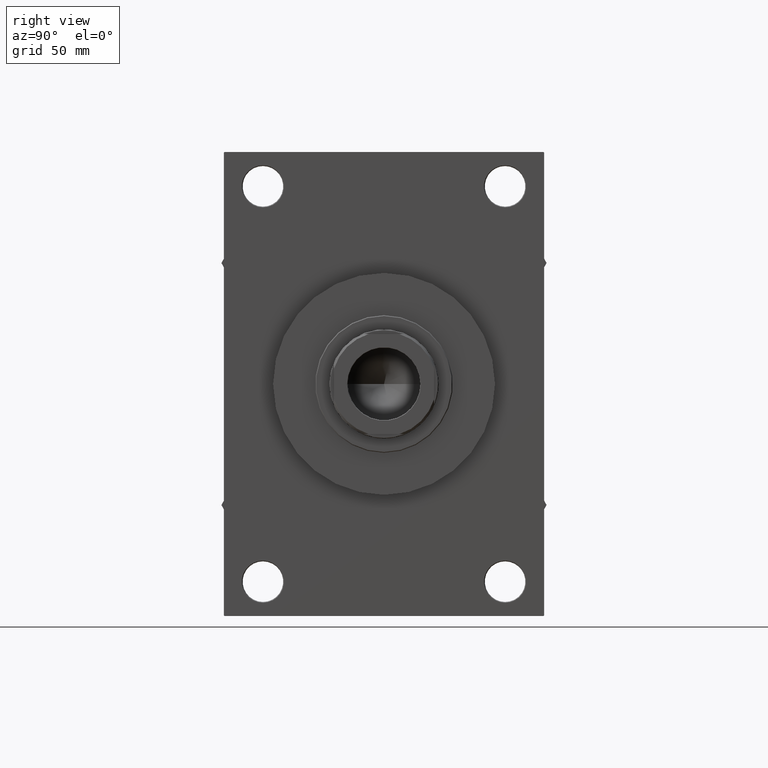
[diagram: clean part render]
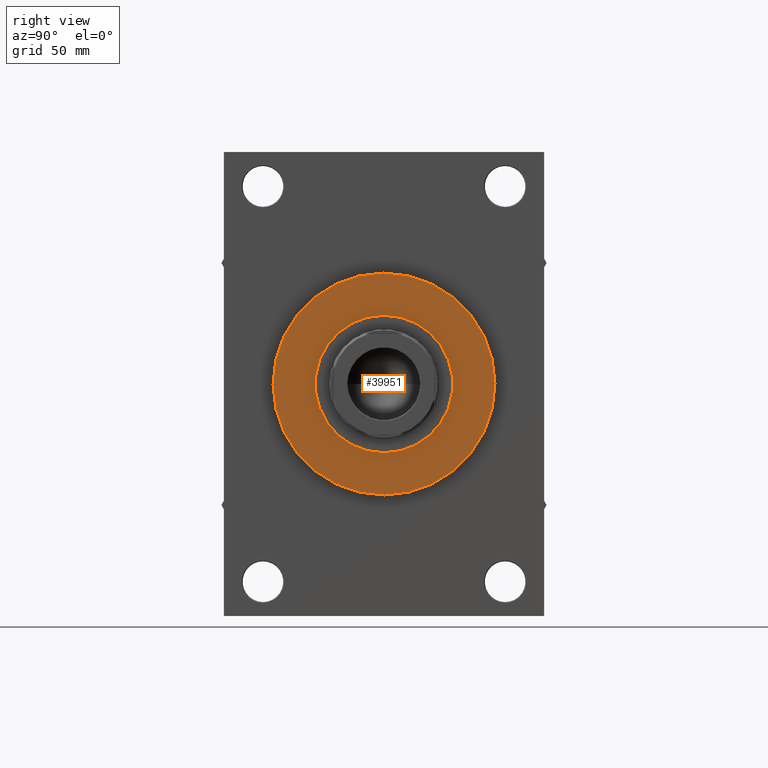
[diagram: same view with one face highlighted and labeled with its STEP entity id]
A machine part, right view. The second image highlights one B-rep face of the part: STEP entity #39951.
In plain terms, the highlighted planar face has unit normal (1, -0, -0).
Its self-contained STEP definition (entity closure, byte-faithful):
#2004 = EDGE_LOOP ( 'NONE', ( #26645, #24021 ) ) ;
#2281 = CIRCLE ( 'NONE', #20011, 71.00000000000001421 ) ;
#3054 = DIRECTION ( 'NONE',  ( 0.000000000000000000, 0.000000000000000000, 1.000000000000000000 ) ) ;
#3878 = DIRECTION ( 'NONE',  ( 1.000000000000000000, 0.000000000000000000, 0.000000000000000000 ) ) ;
#3906 = EDGE_CURVE ( 'NONE', #16915, #42756, #42789, .T. ) ;
#5393 = DIRECTION ( 'NONE',  ( 0.000000000000000000, 0.000000000000000000, 1.000000000000000000 ) ) ;
#5765 = DIRECTION ( 'NONE',  ( 0.000000000000000000, 0.000000000000000000, 1.000000000000000000 ) ) ;
#8526 = DIRECTION ( 'NONE',  ( 1.000000000000000000, 0.000000000000000000, -0.000000000000000000 ) ) ;
#8766 = FACE_OUTER_BOUND ( 'NONE', #2004, .T. ) ;
#9719 = DIRECTION ( 'NONE',  ( 1.000000000000000000, 0.000000000000000000, 0.000000000000000000 ) ) ;
#11213 = AXIS2_PLACEMENT_3D ( 'NONE', #28617, #3054, #47159 ) ;
#12425 = AXIS2_PLACEMENT_3D ( 'NONE', #22199, #36900, #3878 ) ;
#13341 = CARTESIAN_POINT ( 'NONE',  ( 0.000000000000000000, 0.000000000000000000, 43.25999999999999801 ) ) ;
#13727 = CARTESIAN_POINT ( 'NONE',  ( 0.000000000000000000, 0.000000000000000000, 43.25999999999999801 ) ) ;
#15955 = CARTESIAN_POINT ( 'NONE',  ( 71.00000000000001421, 8.694992273946208141E-15, 43.25999999999999801 ) ) ;
#16104 = EDGE_LOOP ( 'NONE', ( #23555, #16301 ) ) ;
#16301 = ORIENTED_EDGE ( 'NONE', *, *, #3906, .F. ) ;
#16915 = VERTEX_POINT ( 'NONE', #46251 ) ;
#16993 = EDGE_CURVE ( 'NONE', #30290, #18027, #2281, .T. ) ;
#18027 = VERTEX_POINT ( 'NONE', #39689 ) ;
#20011 = AXIS2_PLACEMENT_3D ( 'NONE', #13727, #5765, #20470 ) ;
#20470 = DIRECTION ( 'NONE',  ( 1.000000000000000000, 0.000000000000000000, 0.000000000000000000 ) ) ;
#21315 = EDGE_CURVE ( 'NONE', #42756, #16915, #27825, .T. ) ;
#22199 = CARTESIAN_POINT ( 'NONE',  ( 0.000000000000000000, 0.000000000000000000, 43.25999999999999801 ) ) ;
#22424 = CARTESIAN_POINT ( 'NONE',  ( -44.00000000000000000, 0.000000000000000000, 43.25999999999999801 ) ) ;
#23449 = PLANE ( 'NONE',  #37600 ) ;
#23555 = ORIENTED_EDGE ( 'NONE', *, *, #21315, .F. ) ;
#24021 = ORIENTED_EDGE ( 'NONE', *, *, #16993, .T. ) ;
#24593 = EDGE_CURVE ( 'NONE', #18027, #30290, #29333, .T. ) ;
#26645 = ORIENTED_EDGE ( 'NONE', *, *, #24593, .T. ) ;
#27825 = CIRCLE ( 'NONE', #41676, 44.00000000000000000 ) ;
#28024 = DIRECTION ( 'NONE',  ( 0.000000000000000000, 0.000000000000000000, 1.000000000000000000 ) ) ;
#28617 = CARTESIAN_POINT ( 'NONE',  ( 0.000000000000000000, 0.000000000000000000, 43.25999999999999801 ) ) ;
#29333 = CIRCLE ( 'NONE', #12425, 71.00000000000001421 ) ;
#30290 = VERTEX_POINT ( 'NONE', #15955 ) ;
#36900 = DIRECTION ( 'NONE',  ( 0.000000000000000000, 0.000000000000000000, 1.000000000000000000 ) ) ;
#37600 = AXIS2_PLACEMENT_3D ( 'NONE', #41535, #5393, #8526 ) ;
#38408 = FACE_BOUND ( 'NONE', #16104, .T. ) ;
#39689 = CARTESIAN_POINT ( 'NONE',  ( -71.00000000000001421, 0.000000000000000000, 43.25999999999999801 ) ) ;
#39951 = ADVANCED_FACE ( 'NONE', ( #38408, #8766 ), #23449, .T. ) ;
#41535 = CARTESIAN_POINT ( 'NONE',  ( 0.000000000000000000, 0.000000000000000000, 43.25999999999999801 ) ) ;
#41676 = AXIS2_PLACEMENT_3D ( 'NONE', #13341, #28024, #9719 ) ;
#42756 = VERTEX_POINT ( 'NONE', #22424 ) ;
#42789 = CIRCLE ( 'NONE', #11213, 44.00000000000000000 ) ;
#46251 = CARTESIAN_POINT ( 'NONE',  ( 44.00000000000000000, 5.388445916248353619E-15, 43.25999999999999801 ) ) ;
#47159 = DIRECTION ( 'NONE',  ( 1.000000000000000000, 0.000000000000000000, 0.000000000000000000 ) ) ;